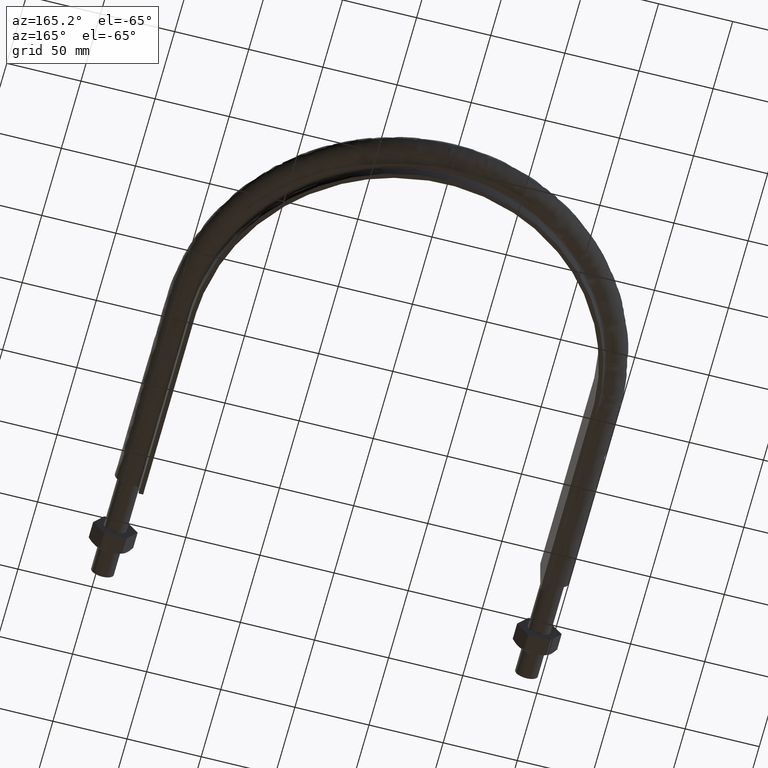
[diagram: clean part render]
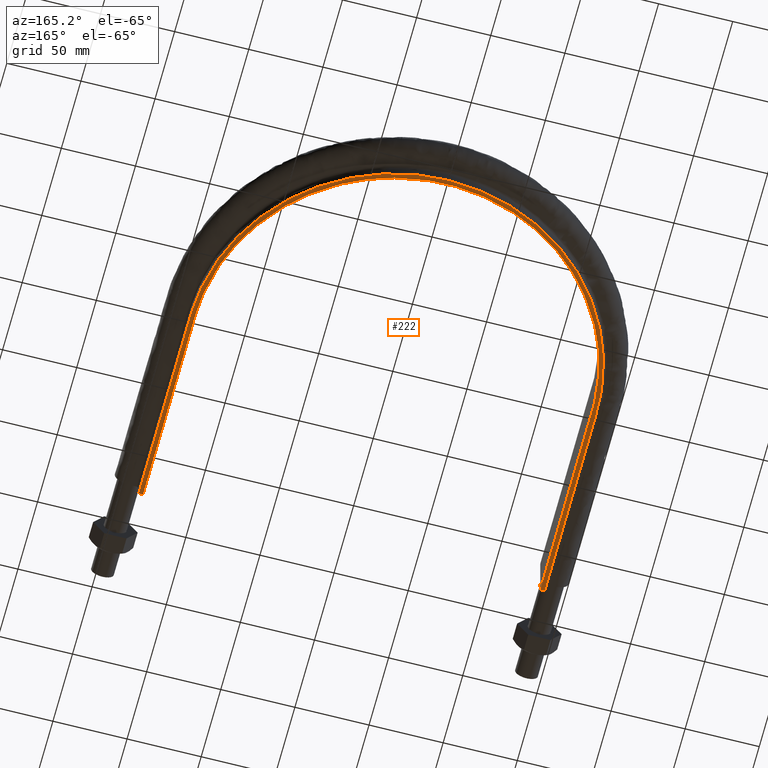
[diagram: same view with one face highlighted and labeled with its STEP entity id]
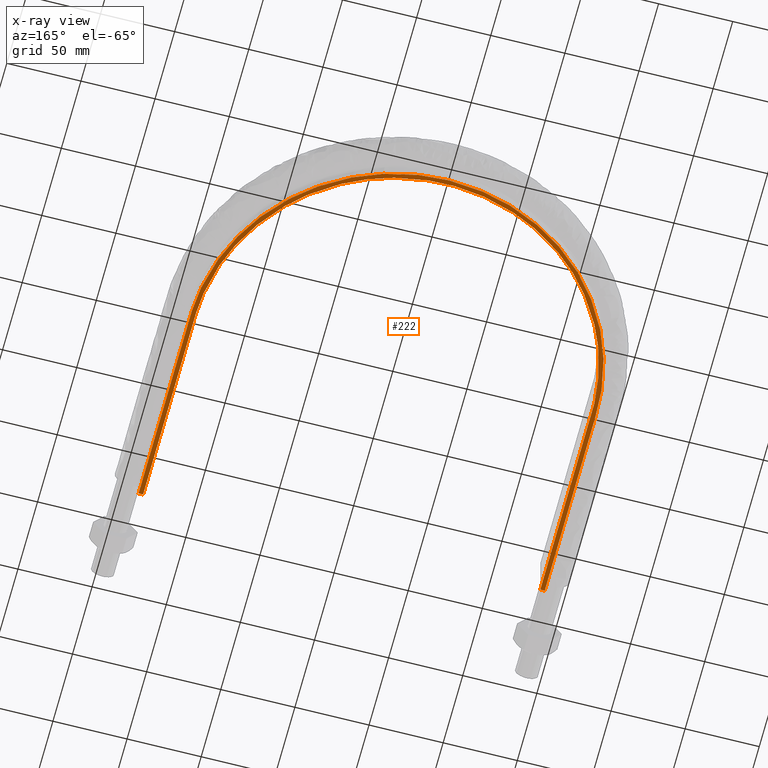
[diagram: x-ray of the same camera — body ghosted, the highlighted face saturated]
A machine part, auxiliary view. The second image highlights one B-rep face of the part: STEP entity #222.
The next image is the same camera in x-ray: the body ghosted, the highlighted face saturated — about 0% of this face is hidden behind the body in this view.
In plain terms, the highlighted planar face has unit normal (0, 0, 1).
Its self-contained STEP definition (entity closure, byte-faithful):
#222 = ADVANCED_FACE( '', ( #267 ), #268, .F. );
#267 = FACE_OUTER_BOUND( '', #369, .T. );
#268 = PLANE( '', #370 );
#369 = EDGE_LOOP( '', ( #1508, #1509, #1510, #1511 ) );
#370 = AXIS2_PLACEMENT_3D( '', #1512, #1513, #1514 );
#1508 = ORIENTED_EDGE( '', *, *, #1837, .F. );
#1509 = ORIENTED_EDGE( '', *, *, #1843, .F. );
#1510 = ORIENTED_EDGE( '', *, *, #1844, .T. );
#1511 = ORIENTED_EDGE( '', *, *, #1838, .F. );
#1512 = CARTESIAN_POINT( '', ( 200.000000000000, 469.500000000000, -20.0000000000000 ) );
#1513 = DIRECTION( '', ( 0.000000000000000, 0.000000000000000, 1.00000000000000 ) );
#1514 = DIRECTION( '', ( 1.00000000000000, 0.000000000000000, 0.000000000000000 ) );
#1837 = EDGE_CURVE( '', #1915, #1910, #1917, .T. );
#1838 = EDGE_CURVE( '', #1910, #1918, #1919, .T. );
#1843 = EDGE_CURVE( '', #1926, #1915, #1927, .T. );
#1844 = EDGE_CURVE( '', #1926, #1918, #1928, .T. );
#1910 = VERTEX_POINT( '', #2160 );
#1915 = VERTEX_POINT( '', #2182 );
#1917 = B_SPLINE_CURVE_WITH_KNOTS( '', 3, ( #2185, #2186, #2187, #2188, #2189, #2190, #2191, #2192, #2193, #2194, #2195, #2196, #2197, #2198, #2199, #2200, #2201 ), .UNSPECIFIED., .F., .F., ( 4, 3, 1, 1, 1, 1, 1, 1, 1, 3, 4 ), ( -10.0000000000000, -9.00000000000000, -8.00000000000000, -7.00000000000000, -6.00000000000000, -5.00000000000000, -4.00000000000000, -3.00000000000000, -2.00000000000000, -1.00000000000000, 0.000000000000000 ), .UNSPECIFIED. );
#1918 = VERTEX_POINT( '', #2202 );
#1919 = LINE( '', #2203, #2204 );
#1926 = VERTEX_POINT( '', #2254 );
#1927 = LINE( '', #2255, #2256 );
#1928 = B_SPLINE_CURVE_WITH_KNOTS( '', 3, ( #2257, #2258, #2259, #2260, #2261, #2262, #2263, #2264, #2265, #2266, #2267, #2268, #2269, #2270, #2271, #2272, #2273, #2274, #2275, #2276, #2277, #2278, #2279, #2280, #2281, #2282, #2283, #2284, #2285, #2286, #2287, #2288, #2289, #2290, #2291, #2292, #2293, #2294, #2295, #2296, #2297, #2298, #2299, #2300, #2301, #2302, #2303, #2304, #2305, #2306, #2307, #2308, #2309, #2310, #2311, #2312, #2313, #2314, #2315, #2316, #2317, #2318, #2319, #2320, #2321, #2322, #2323, #2324, #2325, #2326, #2327, #2328, #2329, #2330, #2331, #2332, #2333, #2334, #2335, #2336, #2337, #2338, #2339, #2340, #2341, #2342, #2343, #2344, #2345, #2346, #2347, #2348, #2349, #2350, #2351, #2352, #2353, #2354, #2355, #2356, #2357, #2358, #2359, #2360, #2361, #2362, #2363 ), .UNSPECIFIED., .F., .F., ( 4, 1, 2, 2, 2, 2, 2, 2, 2, 2, 2, 2, 2, 2, 2, 2, 2, 2, 2, 2, 2, 2, 2, 2, 2, 2, 2, 2, 2, 2, 2, 2, 2, 2, 2, 1, 2, 2, 2, 2, 2, 2, 2, 2, 2, 2, 2, 2, 2, 2, 2, 2, 2, 1, 4 ), ( 0.000000000000000, 0.0874256844655808, 0.131138526698371, 0.133870579337921, 0.136602631977470, 0.142066737256569, 0.152994947814766, 0.174851368931162, 0.180315474210260, 0.183047526849810, 0.185779579489359, 0.196707790047557, 0.218564211163953, 0.229492421722151, 0.232224474361700, 0.234956527001250, 0.240420632280348, 0.262277053396743, 0.273205263954941, 0.275937316594490, 0.278669369234040, 0.284133474513138, 0.305989895629533, 0.316918106187730, 0.322382211466829, 0.325114264106378, 0.327846316745927, 0.349702737862322, 0.360630948420519, 0.366095053699617, 0.368827106339167, 0.371559158978716, 0.393415580095110, 0.415272001211505, 0.418004053851054, 0.420736106490604, 0.426200211769702, 0.437128422327900, 0.458984843444295, 0.461716896083844, 0.464448948723393, 0.469913054002492, 0.480841264560689, 0.502697685677083, 0.508161790956182, 0.513625896235281, 0.524554106793478, 0.546410527909873, 0.551874633188972, 0.557338738468070, 0.562802843747169, 0.565534896386719, 0.568266949026268, 0.611979791259057, 0.699405475724636 ), .UNSPECIFIED. );
#2160 = CARTESIAN_POINT( '', ( 133.950000000000, 69.5000000000000, -20.0000000000000 ) );
#2182 = CARTESIAN_POINT( '', ( -133.950000000000, 69.5000000000001, -20.0000000000000 ) );
#2185 = CARTESIAN_POINT( '', ( -133.950000000000, 69.5000000000001, -20.0000000000000 ) );
#2186 = CARTESIAN_POINT( '', ( -133.950000000000, 113.683333333333, -20.0000000000000 ) );
#2187 = CARTESIAN_POINT( '', ( -133.950000000000, 157.866666666667, -20.0000000000000 ) );
#2188 = CARTESIAN_POINT( '', ( -133.950000000000, 202.050000000000, -20.0000000000000 ) );
#2189 = CARTESIAN_POINT( '', ( -133.950000000000, 219.566032700257, -20.0000000000000 ) );
#2190 = CARTESIAN_POINT( '', ( -126.975474198415, 254.652216480459, -20.0000000000000 ) );
#2191 = CARTESIAN_POINT( '', ( -97.1828205848687, 299.230867859828, -20.0000000000000 ) );
#2192 = CARTESIAN_POINT( '', ( -52.5949635017385, 329.026032119855, -20.0000000000000 ) );
#2193 = CARTESIAN_POINT( '', ( 9.70849429885587E-014, 339.486983940073, -20.0000000000000 ) );
#2194 = CARTESIAN_POINT( '', ( 52.5949635017385, 329.026032119855, -20.0000000000000 ) );
#2195 = CARTESIAN_POINT( '', ( 97.1828205848688, 299.230867859828, -20.0000000000000 ) );
#2196 = CARTESIAN_POINT( '', ( 126.975474198415, 254.652216480460, -20.0000000000000 ) );
#2197 = CARTESIAN_POINT( '', ( 133.950000000000, 219.566032700257, -20.0000000000000 ) );
#2198 = CARTESIAN_POINT( '', ( 133.950000000000, 202.050000000000, -20.0000000000000 ) );
#2199 = CARTESIAN_POINT( '', ( 133.950000000000, 157.866666666667, -20.0000000000000 ) );
#2200 = CARTESIAN_POINT( '', ( 133.950000000000, 113.683333333333, -20.0000000000000 ) );
#2201 = CARTESIAN_POINT( '', ( 133.950000000000, 69.5000000000000, -20.0000000000000 ) );
#2202 = CARTESIAN_POINT( '', ( 136.950000000000, 69.5000000000000, -20.0000000000000 ) );
#2203 = CARTESIAN_POINT( '', ( -200.000000000000, 69.5000000000001, -20.0000000000000 ) );
#2204 = VECTOR( '', #2778, 1000.00000000000 );
#2254 = CARTESIAN_POINT( '', ( -136.950000000000, 69.5000000000001, -20.0000000000000 ) );
#2255 = CARTESIAN_POINT( '', ( -200.000000000000, 69.5000000000001, -20.0000000000000 ) );
#2256 = VECTOR( '', #2781, 1000.00000000000 );
#2257 = CARTESIAN_POINT( '', ( -136.950000000000, 69.5000000000001, -20.0000000000000 ) );
#2258 = CARTESIAN_POINT( '', ( -136.950000000000, 98.6419002480960, -20.0000000000000 ) );
#2259 = CARTESIAN_POINT( '', ( -136.950000000000, 142.354750620240, -20.0000000000000 ) );
#2260 = CARTESIAN_POINT( '', ( -136.950000000000, 186.067600992383, -20.0000000000000 ) );
#2261 = CARTESIAN_POINT( '', ( -136.950000000000, 201.549235499184, -20.0000000000000 ) );
#2262 = CARTESIAN_POINT( '', ( -136.952005766823, 202.459921105950, -20.0000000000000 ) );
#2263 = CARTESIAN_POINT( '', ( -136.934979206279, 204.281279481053, -20.0000000000000 ) );
#2264 = CARTESIAN_POINT( '', ( -136.916553871832, 205.191952619806, -20.0000000000000 ) );
#2265 = CARTESIAN_POINT( '', ( -136.834753701177, 207.923955849778, -20.0000000000000 ) );
#2266 = CARTESIAN_POINT( '', ( -136.743599783762, 209.741272047865, -20.0000000000000 ) );
#2267 = CARTESIAN_POINT( '', ( -136.363495553162, 215.166484778737, -20.0000000000000 ) );
#2268 = CARTESIAN_POINT( '', ( -135.967488703049, 218.753870458477, -20.0000000000000 ) );
#2269 = CARTESIAN_POINT( '', ( -134.367551969833, 229.431038801502, -20.0000000000000 ) );
#2270 = CARTESIAN_POINT( '', ( -132.750553866295, 236.435595074188, -20.0000000000000 ) );
#2271 = CARTESIAN_POINT( '', ( -130.033489035350, 245.047725779307, -20.0000000000000 ) );
#2272 = CARTESIAN_POINT( '', ( -129.454886141079, 246.762891350750, -20.0000000000000 ) );
#2273 = CARTESIAN_POINT( '', ( -128.533317502654, 249.324567410139, -20.0000000000000 ) );
#2274 = CARTESIAN_POINT( '', ( -128.217212893151, 250.176620027544, -20.0000000000000 ) );
#2275 = CARTESIAN_POINT( '', ( -127.566740219222, 251.876957051038, -20.0000000000000 ) );
#2276 = CARTESIAN_POINT( '', ( -127.232398800359, 252.725180838075, -20.0000000000000 ) );
#2277 = CARTESIAN_POINT( '', ( -125.522807242120, 256.937555990533, -20.0000000000000 ) );
#2278 = CARTESIAN_POINT( '', ( -124.027890382204, 260.231015655082, -20.0000000000000 ) );
#2279 = CARTESIAN_POINT( '', ( -119.177772488668, 269.891903517804, -20.0000000000000 ) );
#2280 = CARTESIAN_POINT( '', ( -115.456951462221, 276.039688790391, -20.0000000000000 ) );
#2281 = CARTESIAN_POINT( '', ( -109.152951019678, 284.827169774968, -20.0000000000000 ) );
#2282 = CARTESIAN_POINT( '', ( -106.930050833060, 287.683299996948, -20.0000000000000 ) );
#2283 = CARTESIAN_POINT( '', ( -103.994442146743, 291.159156375508, -20.0000000000000 ) );
#2284 = CARTESIAN_POINT( '', ( -103.399206220789, 291.849830869766, -20.0000000000000 ) );
#2285 = CARTESIAN_POINT( '', ( -102.198265091285, 293.215468669266, -20.0000000000000 ) );
#2286 = CARTESIAN_POINT( '', ( -101.591920700939, 293.891203542509, -20.0000000000000 ) );
#2287 = CARTESIAN_POINT( '', ( -99.7553846231987, 295.897299082120, -20.0000000000000 ) );
#2288 = CARTESIAN_POINT( '', ( -98.5077032633220, 297.206566629277, -20.0000000000000 ) );
#2289 = CARTESIAN_POINT( '', ( -92.1539858603092, 303.613835991360, -20.0000000000000 ) );
#2290 = CARTESIAN_POINT( '', ( -86.7024715106707, 308.295179626350, -20.0000000000000 ) );
#2291 = CARTESIAN_POINT( '', ( -77.9891669345174, 314.670721620154, -20.0000000000000 ) );
#2292 = CARTESIAN_POINT( '', ( -74.9946413234174, 316.687249879641, -20.0000000000000 ) );
#2293 = CARTESIAN_POINT( '', ( -71.1363767592827, 319.069086719325, -20.0000000000000 ) );
#2294 = CARTESIAN_POINT( '', ( -70.3589796436467, 319.538526390088, -20.0000000000000 ) );
#2295 = CARTESIAN_POINT( '', ( -68.7925101038945, 320.463324926278, -20.0000000000000 ) );
#2296 = CARTESIAN_POINT( '', ( -68.0028416365785, 320.918994503183, -20.0000000000000 ) );
#2297 = CARTESIAN_POINT( '', ( -65.6265150793025, 322.258978990766, -20.0000000000000 ) );
#2298 = CARTESIAN_POINT( '', ( -64.0295971988866, 323.118030590863, -20.0000000000000 ) );
#2299 = CARTESIAN_POINT( '', ( -55.9824089667818, 327.244365806933, -20.0000000000000 ) );
#2300 = CARTESIAN_POINT( '', ( -49.3439512001678, 330.003826159942, -20.0000000000000 ) );
#2301 = CARTESIAN_POINT( '', ( -39.0910082445132, 333.346268295585, -20.0000000000000 ) );
#2302 = CARTESIAN_POINT( '', ( -35.6241551653441, 334.327634953121, -20.0000000000000 ) );
#2303 = CARTESIAN_POINT( '', ( -30.3492784457383, 335.598384851545, -20.0000000000000 ) );
#2304 = CARTESIAN_POINT( '', ( -28.5785337099533, 335.988365122301, -20.0000000000000 ) );
#2305 = CARTESIAN_POINT( '', ( -25.9034309357760, 336.522102744634, -20.0000000000000 ) );
#2306 = CARTESIAN_POINT( '', ( -25.0077107436208, 336.691611247165, -20.0000000000000 ) );
#2307 = CARTESIAN_POINT( '', ( -23.2172138820249, 337.012112274074, -20.0000000000000 ) );
#2308 = CARTESIAN_POINT( '', ( -22.3218036874375, 337.163270419112, -20.0000000000000 ) );
#2309 = CARTESIAN_POINT( '', ( -14.2616746941839, 338.442909678166, -20.0000000000000 ) );
#2310 = CARTESIAN_POINT( '', ( -7.08688203433119, 339.005162357811, -20.0000000000000 ) );
#2311 = CARTESIAN_POINT( '', ( 3.69045053043304, 338.997356057590, -20.0000000000000 ) );
#2312 = CARTESIAN_POINT( '', ( 7.28543714267421, 338.851850186395, -20.0000000000000 ) );
#2313 = CARTESIAN_POINT( '', ( 12.6817359396586, 338.418941046076, -20.0000000000000 ) );
#2314 = CARTESIAN_POINT( '', ( 14.4811397915201, 338.238800753870, -20.0000000000000 ) );
#2315 = CARTESIAN_POINT( '', ( 17.1812121944063, 337.914258555032, -20.0000000000000 ) );
#2316 = CARTESIAN_POINT( '', ( 18.0813968219040, 337.797056870439, -20.0000000000000 ) );
#2317 = CARTESIAN_POINT( '', ( 19.8820902819304, 337.544430686412, -20.0000000000000 ) );
#2318 = CARTESIAN_POINT( '', ( 20.7835449490252, 337.408813108144, -20.0000000000000 ) );
#2319 = CARTESIAN_POINT( '', ( 28.8670965883664, 336.111328549368, -20.0000000000000 ) );
#2320 = CARTESIAN_POINT( '', ( 35.8703135520825, 334.406800400236, -20.0000000000000 ) );
#2321 = CARTESIAN_POINT( '', ( 49.5251538415399, 329.933849723649, -20.0000000000000 ) );
#2322 = CARTESIAN_POINT( '', ( 56.1748232267697, 327.159514727648, -20.0000000000000 ) );
#2323 = CARTESIAN_POINT( '', ( 63.4492399727952, 323.413652350487, -20.0000000000000 ) );
#2324 = CARTESIAN_POINT( '', ( 64.2555412528374, 322.988297906819, -20.0000000000000 ) );
#2325 = CARTESIAN_POINT( '', ( 65.8566175141503, 322.123190874324, -20.0000000000000 ) );
#2326 = CARTESIAN_POINT( '', ( 68.2414579242867, 320.803750954368, -20.0000000000000 ) );
#2327 = CARTESIAN_POINT( '', ( 70.5763589403623, 319.419469626318, -20.0000000000000 ) );
#2328 = CARTESIAN_POINT( '', ( 75.1805857318805, 316.565763947985, -20.0000000000000 ) );
#2329 = CARTESIAN_POINT( '', ( 78.1627035340690, 314.549856366460, -20.0000000000000 ) );
#2330 = CARTESIAN_POINT( '', ( 86.8543207620286, 308.171383663376, -20.0000000000000 ) );
#2331 = CARTESIAN_POINT( '', ( 92.3077229888270, 303.476301431774, -20.0000000000000 ) );
#2332 = CARTESIAN_POINT( '', ( 98.0418417248303, 297.673728261737, -20.0000000000000 ) );
#2333 = CARTESIAN_POINT( '', ( 98.6733697505187, 297.021731690673, -20.0000000000000 ) );
#2334 = CARTESIAN_POINT( '', ( 99.9251833237658, 295.703141292691, -20.0000000000000 ) );
#2335 = CARTESIAN_POINT( '', ( 100.546136743126, 295.035752086248, -20.0000000000000 ) );
#2336 = CARTESIAN_POINT( '', ( 102.386046552847, 293.018007311479, -20.0000000000000 ) );
#2337 = CARTESIAN_POINT( '', ( 103.581668710405, 291.652670943049, -20.0000000000000 ) );
#2338 = CARTESIAN_POINT( '', ( 107.077810366186, 287.497593093929, -20.0000000000000 ) );
#2339 = CARTESIAN_POINT( '', ( 109.287409665396, 284.648655660820, -20.0000000000000 ) );
#2340 = CARTESIAN_POINT( '', ( 115.563663674945, 275.872310524438, -20.0000000000000 ) );
#2341 = CARTESIAN_POINT( '', ( 119.278439319520, 269.715802833915, -20.0000000000000 ) );
#2342 = CARTESIAN_POINT( '', ( 123.322162063993, 261.629687512530, -20.0000000000000 ) );
#2343 = CARTESIAN_POINT( '', ( 124.100657851924, 259.992770208312, -20.0000000000000 ) );
#2344 = CARTESIAN_POINT( '', ( 125.595826737246, 256.678684334621, -20.0000000000000 ) );
#2345 = CARTESIAN_POINT( '', ( 126.312684101751, 255.000403133022, -20.0000000000000 ) );
#2346 = CARTESIAN_POINT( '', ( 128.350441665642, 249.950404789014, -20.0000000000000 ) );
#2347 = CARTESIAN_POINT( '', ( 129.565681668813, 246.548771227845, -20.0000000000000 ) );
#2348 = CARTESIAN_POINT( '', ( 132.799201309550, 236.243261059056, -20.0000000000000 ) );
#2349 = CARTESIAN_POINT( '', ( 134.406489655846, 229.239070076672, -20.0000000000000 ) );
#2350 = CARTESIAN_POINT( '', ( 135.730368078417, 220.316580552530, -20.0000000000000 ) );
#2351 = CARTESIAN_POINT( '', ( 135.960596827437, 218.523650463596, -20.0000000000000 ) );
#2352 = CARTESIAN_POINT( '', ( 136.350715609650, 214.920622076936, -20.0000000000000 ) );
#2353 = CARTESIAN_POINT( '', ( 136.510773884773, 213.109390090225, -20.0000000000000 ) );
#2354 = CARTESIAN_POINT( '', ( 136.758613068842, 209.474281669840, -20.0000000000000 ) );
#2355 = CARTESIAN_POINT( '', ( 136.846031799769, 207.656639207727, -20.0000000000000 ) );
#2356 = CARTESIAN_POINT( '', ( 136.922369077726, 204.930043041108, -20.0000000000000 ) );
#2357 = CARTESIAN_POINT( '', ( 136.939052762000, 204.021156467257, -20.0000000000000 ) );
#2358 = CARTESIAN_POINT( '', ( 136.951967908155, 202.203333870093, -20.0000000000000 ) );
#2359 = CARTESIAN_POINT( '', ( 136.950000000000, 201.294402200351, -20.0000000000000 ) );
#2360 = CARTESIAN_POINT( '', ( 136.950000000000, 185.842644700999, -20.0000000000000 ) );
#2361 = CARTESIAN_POINT( '', ( 136.950000000000, 142.214152938125, -20.0000000000000 ) );
#2362 = CARTESIAN_POINT( '', ( 136.950000000000, 98.5856611752500, -20.0000000000000 ) );
#2363 = CARTESIAN_POINT( '', ( 136.950000000000, 69.5000000000000, -20.0000000000000 ) );
#2778 = DIRECTION( '', ( 1.00000000000000, -1.83649404852125E-048, 0.000000000000000 ) );
#2781 = DIRECTION( '', ( 1.00000000000000, -1.83649404852125E-048, 0.000000000000000 ) );